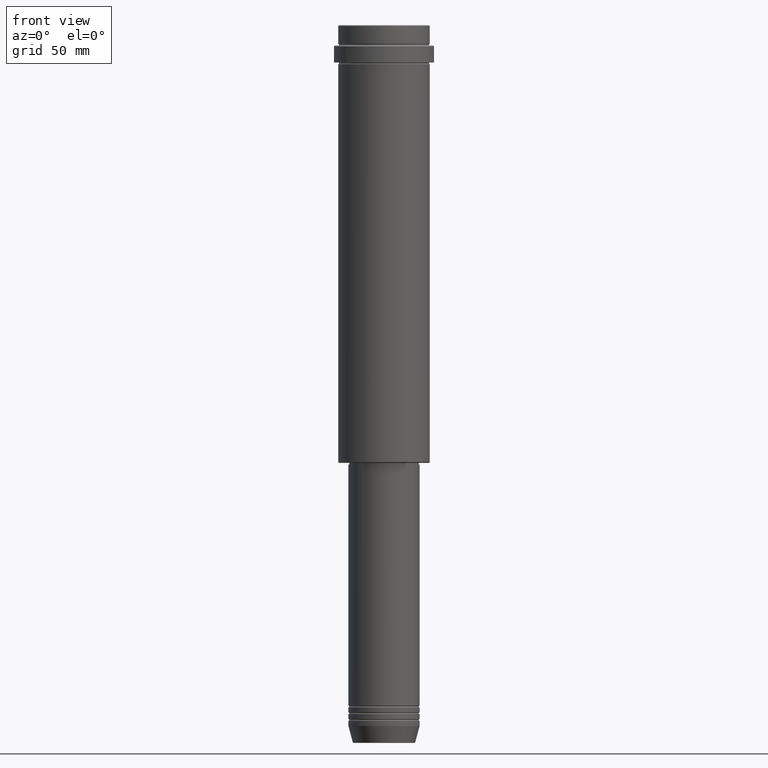
[diagram: clean part render]
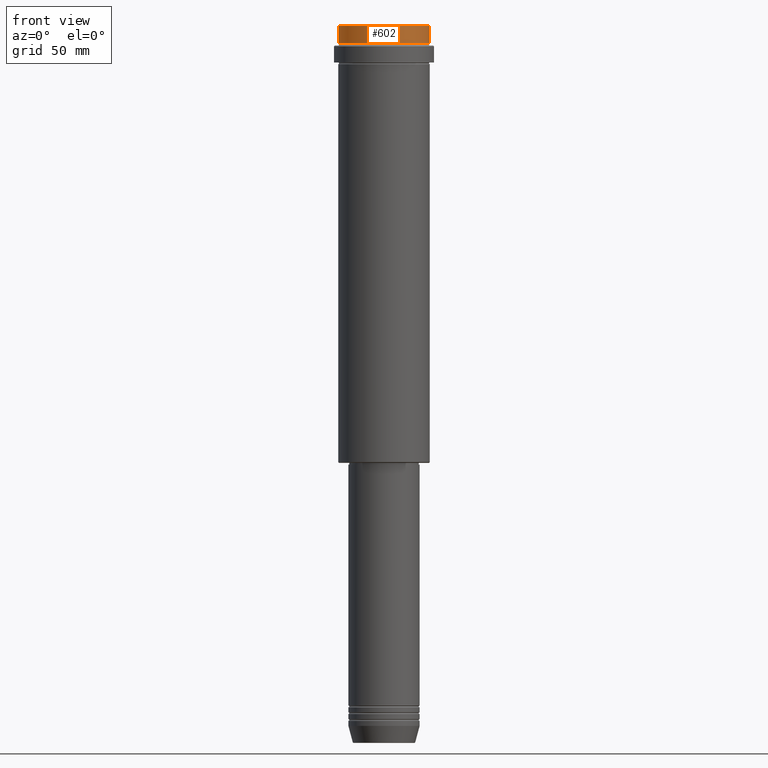
[diagram: same view with one face highlighted and labeled with its STEP entity id]
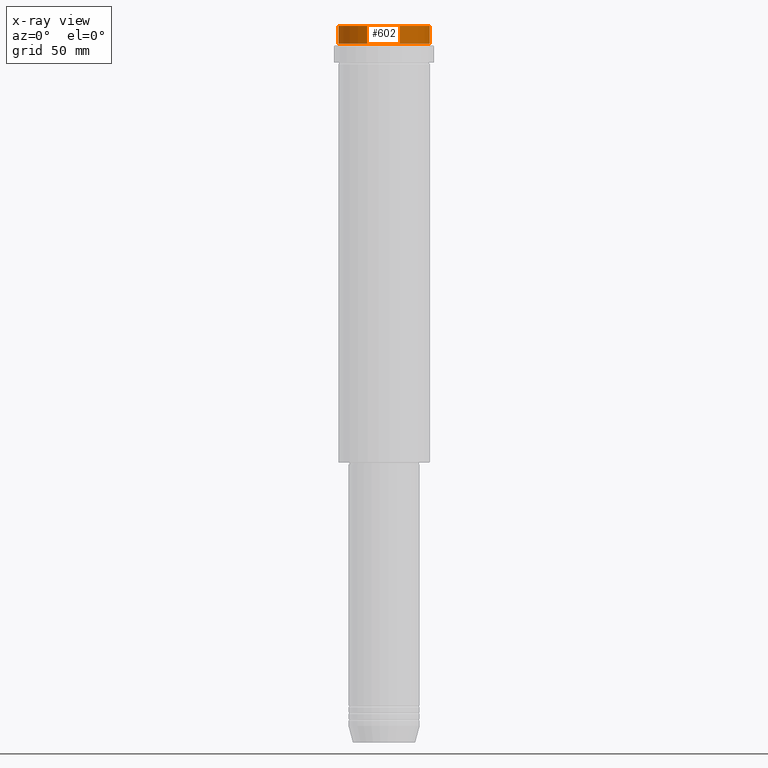
[diagram: x-ray of the same camera — body ghosted, the highlighted face saturated]
A machine part, front view. The second image highlights one B-rep face of the part: STEP entity #602.
The next image is the same camera in x-ray: the body ghosted, the highlighted face saturated — about 0% of this face is hidden behind the body in this view.
In plain terms, the highlighted cylindrical surface (partial cylindrical patch) has radius 27 mm, axis along (-0, -0, 1).
Its self-contained STEP definition (entity closure, byte-faithful):
#23 = DIRECTION ( 'NONE',  ( 1.000000000000000000, 0.000000000000000000, 0.000000000000000000 ) ) ;
#43 = VECTOR ( 'NONE', #240, 1000.000000000000000 ) ;
#51 = DIRECTION ( 'NONE',  ( 0.000000000000000000, 0.000000000000000000, -1.000000000000000000 ) ) ;
#68 = CARTESIAN_POINT ( 'NONE',  ( 0.000000000000000000, 0.000000000000000000, -0.4999999999999796274 ) ) ;
#129 = LINE ( 'NONE', #452, #1055 ) ;
#137 = ORIENTED_EDGE ( 'NONE', *, *, #1262, .T. ) ;
#165 = DIRECTION ( 'NONE',  ( 1.000000000000000000, 0.000000000000000000, 0.000000000000000000 ) ) ;
#193 = VERTEX_POINT ( 'NONE', #289 ) ;
#222 = CIRCLE ( 'NONE', #1074, 27.00000000000000355 ) ;
#240 = DIRECTION ( 'NONE',  ( -0.000000000000000000, -0.000000000000000000, 1.000000000000000000 ) ) ;
#252 = ORIENTED_EDGE ( 'NONE', *, *, #609, .T. ) ;
#279 = DIRECTION ( 'NONE',  ( 1.000000000000000000, 0.000000000000000000, 0.000000000000000000 ) ) ;
#289 = CARTESIAN_POINT ( 'NONE',  ( -27.00000000000000355, 3.306546357697854128E-15, -0.4999999999999796274 ) ) ;
#318 = AXIS2_PLACEMENT_3D ( 'NONE', #767, #805, #165 ) ;
#329 = EDGE_CURVE ( 'NONE', #752, #193, #458, .T. ) ;
#452 = CARTESIAN_POINT ( 'NONE',  ( 27.00000000000000355, 0.000000000000000000, 0.000000000000000000 ) ) ;
#458 = LINE ( 'NONE', #709, #43 ) ;
#481 = VERTEX_POINT ( 'NONE', #591 ) ;
#556 = DIRECTION ( 'NONE',  ( -0.000000000000000000, -0.000000000000000000, 1.000000000000000000 ) ) ;
#591 = CARTESIAN_POINT ( 'NONE',  ( 27.00000000000000355, 0.000000000000000000, -0.4999999999999796274 ) ) ;
#602 = ADVANCED_FACE ( 'NONE', ( #1374 ), #686, .T. ) ;
#609 = EDGE_CURVE ( 'NONE', #481, #193, #222, .T. ) ;
#686 = CYLINDRICAL_SURFACE ( 'NONE', #318, 27.00000000000000355 ) ;
#699 = VERTEX_POINT ( 'NONE', #863 ) ;
#709 = CARTESIAN_POINT ( 'NONE',  ( -27.00000000000000355, 3.306546357697854128E-15, 0.000000000000000000 ) ) ;
#752 = VERTEX_POINT ( 'NONE', #907 ) ;
#767 = CARTESIAN_POINT ( 'NONE',  ( 0.000000000000000000, 0.000000000000000000, 0.000000000000000000 ) ) ;
#805 = DIRECTION ( 'NONE',  ( -0.000000000000000000, -0.000000000000000000, 1.000000000000000000 ) ) ;
#863 = CARTESIAN_POINT ( 'NONE',  ( 27.00000000000000355, 0.000000000000000000, -11.00000000000000178 ) ) ;
#884 = ORIENTED_EDGE ( 'NONE', *, *, #329, .F. ) ;
#907 = CARTESIAN_POINT ( 'NONE',  ( -27.00000000000000355, 3.306546357697854128E-15, -11.00000000000000178 ) ) ;
#963 = CIRCLE ( 'NONE', #1144, 27.00000000000000355 ) ;
#1055 = VECTOR ( 'NONE', #1220, 1000.000000000000000 ) ;
#1074 = AXIS2_PLACEMENT_3D ( 'NONE', #68, #51, #279 ) ;
#1108 = CARTESIAN_POINT ( 'NONE',  ( 0.000000000000000000, 0.000000000000000000, -11.00000000000000178 ) ) ;
#1141 = EDGE_LOOP ( 'NONE', ( #884, #1241, #137, #252 ) ) ;
#1144 = AXIS2_PLACEMENT_3D ( 'NONE', #1108, #556, #23 ) ;
#1220 = DIRECTION ( 'NONE',  ( -0.000000000000000000, -0.000000000000000000, 1.000000000000000000 ) ) ;
#1241 = ORIENTED_EDGE ( 'NONE', *, *, #1314, .T. ) ;
#1262 = EDGE_CURVE ( 'NONE', #699, #481, #129, .T. ) ;
#1314 = EDGE_CURVE ( 'NONE', #752, #699, #963, .T. ) ;
#1374 = FACE_OUTER_BOUND ( 'NONE', #1141, .T. ) ;